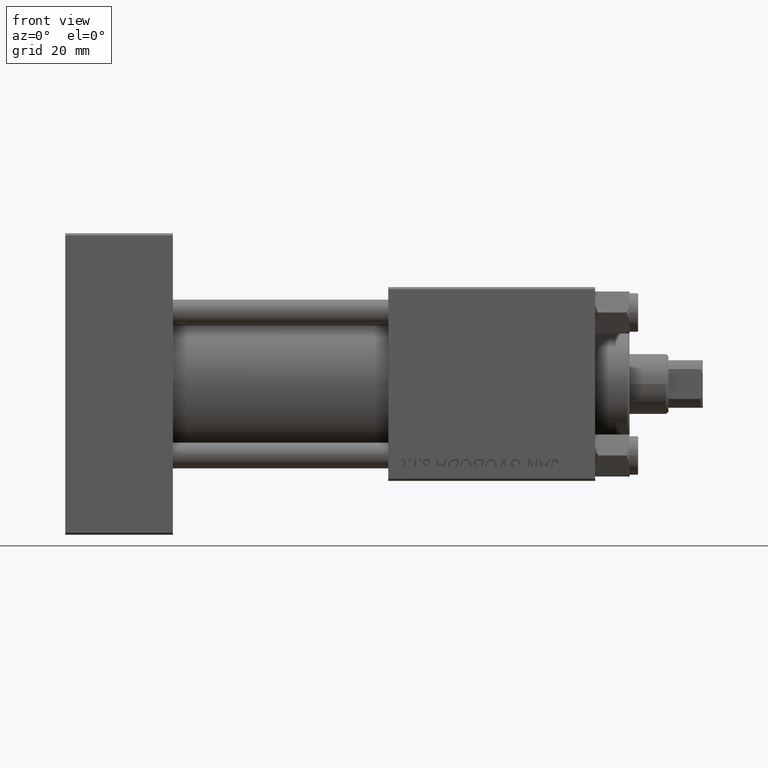
[diagram: clean part render]
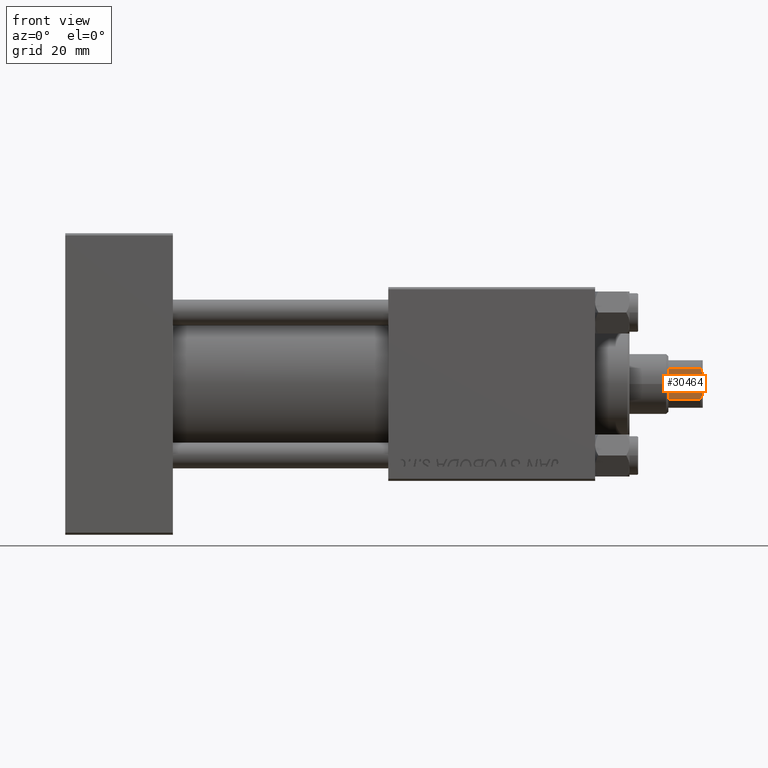
[diagram: same view with one face highlighted and labeled with its STEP entity id]
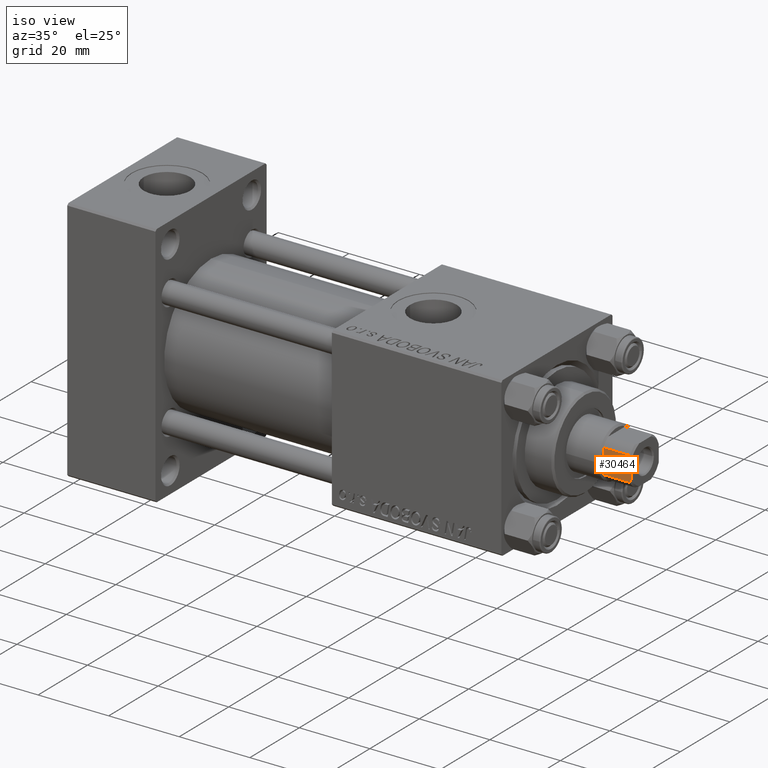
[diagram: same view with one face highlighted and labeled with its STEP entity id]
A machine part, front view. The second image highlights one B-rep face of the part: STEP entity #30464.
A second angle (iso view) of the same face is appended — the face is thin or edge-on in the first view.
In plain terms, the highlighted planar face has unit normal (0, 1, 0).
Its self-contained STEP definition (entity closure, byte-faithful):
#853 = LINE ( 'NONE', #16250, #4484 ) ;
#1661 = LINE ( 'NONE', #16316, #6688 ) ;
#3592 = EDGE_CURVE ( 'NONE', #32357, #6764, #13380, .T. ) ;
#3636 = B_SPLINE_CURVE_WITH_KNOTS ( 'NONE', 3,
 ( #36343, #47483, #20436, #39896 ),
 .UNSPECIFIED., .F., .F.,
 ( 4, 4 ),
 ( 4.336808689942017736E-19, 0.001177604464225487325 ),
 .UNSPECIFIED. ) ;
#4484 = VECTOR ( 'NONE', #31654, 1000.000000000000000 ) ;
#4817 = EDGE_CURVE ( 'NONE', #16231, #32357, #1661, .T. ) ;
#6594 = EDGE_CURVE ( 'NONE', #37652, #16231, #6857, .T. ) ;
#6688 = VECTOR ( 'NONE', #8278, 1000.000000000000000 ) ;
#6764 = VERTEX_POINT ( 'NONE', #32059 ) ;
#6793 = VECTOR ( 'NONE', #16412, 1000.000000000000000 ) ;
#6857 = LINE ( 'NONE', #17691, #24518 ) ;
#7237 = CARTESIAN_POINT ( 'NONE',  ( 5.499999999999999112, 5.500000000000000888, 123.0000000000000000 ) ) ;
#7577 = CARTESIAN_POINT ( 'NONE',  ( 5.499999999999999112, -3.464101615137757939, 114.9999999999999716 ) ) ;
#7729 = EDGE_CURVE ( 'NONE', #37652, #34919, #24000, .T. ) ;
#8278 = DIRECTION ( 'NONE',  ( -0.000000000000000000, -0.000000000000000000, 1.000000000000000000 ) ) ;
#10144 = ORIENTED_EDGE ( 'NONE', *, *, #4817, .T. ) ;
#12224 = ORIENTED_EDGE ( 'NONE', *, *, #40191, .F. ) ;
#13033 = ORIENTED_EDGE ( 'NONE', *, *, #7729, .F. ) ;
#13380 = B_SPLINE_CURVE_WITH_KNOTS ( 'NONE', 3,
 ( #35333, #39378, #28239, #43422 ),
 .UNSPECIFIED., .F., .F.,
 ( 4, 4 ),
 ( 0.000000000000000000, 0.001177604464225533295 ),
 .UNSPECIFIED. ) ;
#13657 = DIRECTION ( 'NONE',  ( -1.577021341797097560E-16, 1.000000000000000000, -0.000000000000000000 ) ) ;
#15215 = CARTESIAN_POINT ( 'NONE',  ( 5.500000000000000000, -2.397915761656381761, 123.0000000000000000 ) ) ;
#15277 = EDGE_CURVE ( 'NONE', #24635, #34919, #3636, .T. ) ;
#16231 = VERTEX_POINT ( 'NONE', #42648 ) ;
#16250 = CARTESIAN_POINT ( 'NONE',  ( 5.499999999999999112, 5.500000000000000888, 123.0000000000000000 ) ) ;
#16316 = CARTESIAN_POINT ( 'NONE',  ( 5.499999999999999112, 3.464101615137755719, -0.001000000000001000089 ) ) ;
#16412 = DIRECTION ( 'NONE',  ( -0.000000000000000000, -0.000000000000000000, 1.000000000000000000 ) ) ;
#17691 = CARTESIAN_POINT ( 'NONE',  ( 5.499999999999999112, 5.500000000000000888, 115.0000000000000000 ) ) ;
#20436 = CARTESIAN_POINT ( 'NONE',  ( 5.500000000000000888, -3.117237133530634363, 122.6848575093798814 ) ) ;
#22615 = DIRECTION ( 'NONE',  ( -1.000000000000000000, -1.577021341797097560E-16, 0.000000000000000000 ) ) ;
#24000 = LINE ( 'NONE', #47496, #6793 ) ;
#24518 = VECTOR ( 'NONE', #13657, 1000.000000000000000 ) ;
#24532 = ORIENTED_EDGE ( 'NONE', *, *, #6594, .T. ) ;
#24635 = VERTEX_POINT ( 'NONE', #15215 ) ;
#25031 = CARTESIAN_POINT ( 'NONE',  ( 5.499999999999998224, -3.464101615137757051, 122.5000000000000142 ) ) ;
#27716 = CARTESIAN_POINT ( 'NONE',  ( 5.499999999999999112, 3.464101615137755719, 122.4999999999999858 ) ) ;
#28239 = CARTESIAN_POINT ( 'NONE',  ( 5.500000000000000000, 2.763039233705782749, 122.8540774452369959 ) ) ;
#30464 = ADVANCED_FACE ( 'NONE', ( #33727 ), #41826, .F. ) ;
#31654 = DIRECTION ( 'NONE',  ( -1.577021341797097560E-16, 1.000000000000000000, -0.000000000000000000 ) ) ;
#32059 = CARTESIAN_POINT ( 'NONE',  ( 5.500000000000000000, 2.397915761656341793, 123.0000000000000000 ) ) ;
#32357 = VERTEX_POINT ( 'NONE', #27716 ) ;
#32614 = ORIENTED_EDGE ( 'NONE', *, *, #3592, .T. ) ;
#33128 = ORIENTED_EDGE ( 'NONE', *, *, #15277, .T. ) ;
#33727 = FACE_OUTER_BOUND ( 'NONE', #34134, .T. ) ;
#34134 = EDGE_LOOP ( 'NONE', ( #10144, #32614, #12224, #33128, #13033, #24532 ) ) ;
#34919 = VERTEX_POINT ( 'NONE', #25031 ) ;
#35333 = CARTESIAN_POINT ( 'NONE',  ( 5.499999999999999112, 3.464101615137755719, 122.4999999999999858 ) ) ;
#36343 = CARTESIAN_POINT ( 'NONE',  ( 5.500000000000000000, -2.397915761656381761, 123.0000000000000000 ) ) ;
#37652 = VERTEX_POINT ( 'NONE', #7577 ) ;
#38033 = DIRECTION ( 'NONE',  ( 1.577021341797097560E-16, -1.000000000000000000, 0.000000000000000000 ) ) ;
#39378 = CARTESIAN_POINT ( 'NONE',  ( 5.499999999999999112, 3.117237133530619264, 122.6848575093798672 ) ) ;
#39896 = CARTESIAN_POINT ( 'NONE',  ( 5.499999999999998224, -3.464101615137757051, 122.5000000000000142 ) ) ;
#40191 = EDGE_CURVE ( 'NONE', #24635, #6764, #853, .T. ) ;
#41826 = PLANE ( 'NONE',  #46921 ) ;
#42648 = CARTESIAN_POINT ( 'NONE',  ( 5.499999999999999112, 3.464101615137755719, 114.9999999999999716 ) ) ;
#43422 = CARTESIAN_POINT ( 'NONE',  ( 5.500000000000000000, 2.397915761656341793, 123.0000000000000000 ) ) ;
#46921 = AXIS2_PLACEMENT_3D ( 'NONE', #7237, #22615, #38033 ) ;
#47483 = CARTESIAN_POINT ( 'NONE',  ( 5.500000000000000888, -2.763039233705806730, 122.8540774452369959 ) ) ;
#47496 = CARTESIAN_POINT ( 'NONE',  ( 5.499999999999998224, -3.464101615137757051, -0.001000000000001000089 ) ) ;